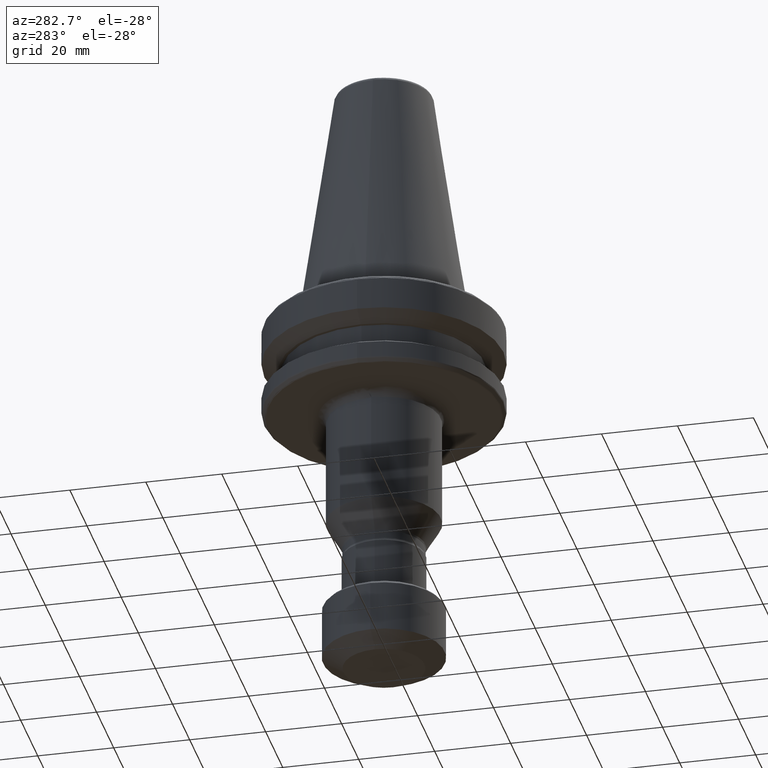
[diagram: clean part render]
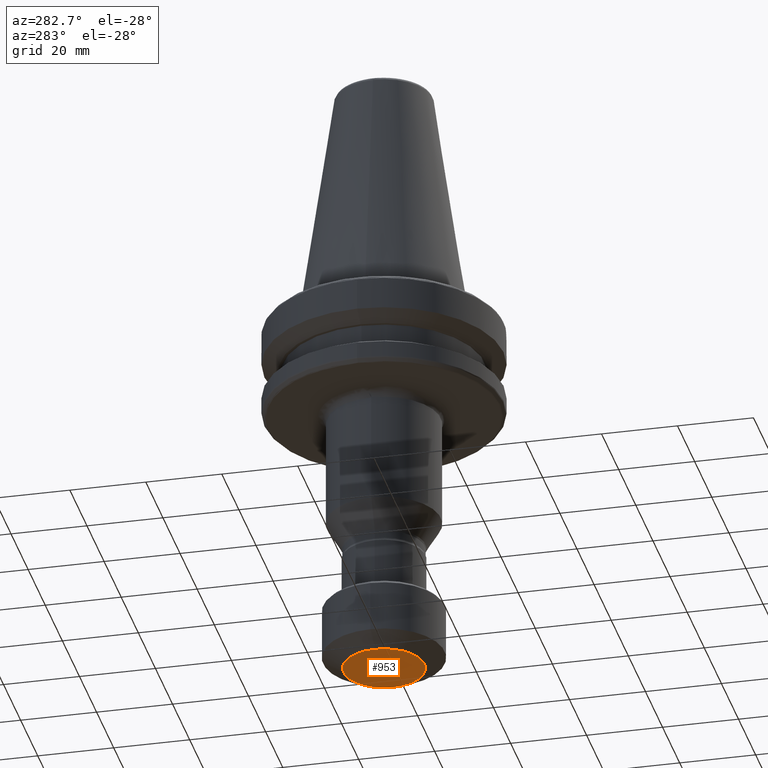
[diagram: same view with one face highlighted and labeled with its STEP entity id]
A machine part, auxiliary view. The second image highlights one B-rep face of the part: STEP entity #953.
In plain terms, the highlighted planar face has unit normal (-0, 0, -1).
Its self-contained STEP definition (entity closure, byte-faithful):
#65 = CIRCLE ( 'NONE', #223, 10.67095564673592500 ) ;
#223 = AXIS2_PLACEMENT_3D ( 'NONE', #832, #2987, #1141 ) ;
#520 = CIRCLE ( 'NONE', #3042, 10.67095564673592500 ) ;
#533 = CARTESIAN_POINT ( 'NONE',  ( 88.65254260326510400, 103.8751982920319800, -1.732962761568514100 ) ) ;
#832 = CARTESIAN_POINT ( 'NONE',  ( 77.98158695652918500, 103.8751982920319800, -1.732962761568514100 ) ) ;
#861 = FACE_OUTER_BOUND ( 'NONE', #3221, .T. ) ;
#953 = ADVANCED_FACE ( 'NONE', ( #861 ), #1194, .T. ) ;
#1141 = DIRECTION ( 'NONE',  ( -1.000000000000000000, 0.0000000000000000000, 0.0000000000000000000 ) ) ;
#1194 = PLANE ( 'NONE',  #2471 ) ;
#1307 = CARTESIAN_POINT ( 'NONE',  ( 77.98158695652918500, 103.8751982920319800, -1.732962761568514100 ) ) ;
#1497 = DIRECTION ( 'NONE',  ( -1.000000000000000000, 0.0000000000000000000, 0.0000000000000000000 ) ) ;
#1655 = DIRECTION ( 'NONE',  ( -1.000000000000000000, 0.0000000000000000000, 0.0000000000000000000 ) ) ;
#1930 = EDGE_CURVE ( 'NONE', #2767, #3774, #520, .T. ) ;
#2471 = AXIS2_PLACEMENT_3D ( 'NONE', #2490, #3683, #1497 ) ;
#2490 = CARTESIAN_POINT ( 'NONE',  ( 77.98158695652918500, 112.2523663652047500, -1.732962761795309400 ) ) ;
#2767 = VERTEX_POINT ( 'NONE', #3159 ) ;
#2987 = DIRECTION ( 'NONE',  ( -0.0000000000000000000, -0.0000000000000000000, -1.000000000000000000 ) ) ;
#3042 = AXIS2_PLACEMENT_3D ( 'NONE', #1307, #3483, #1655 ) ;
#3159 = CARTESIAN_POINT ( 'NONE',  ( 67.31063130979325100, 103.8751982920319800, -1.732962761568514100 ) ) ;
#3160 = EDGE_CURVE ( 'NONE', #3774, #2767, #65, .T. ) ;
#3221 = EDGE_LOOP ( 'NONE', ( #3658, #3394 ) ) ;
#3394 = ORIENTED_EDGE ( 'NONE', *, *, #1930, .T. ) ;
#3483 = DIRECTION ( 'NONE',  ( -0.0000000000000000000, -0.0000000000000000000, -1.000000000000000000 ) ) ;
#3658 = ORIENTED_EDGE ( 'NONE', *, *, #3160, .T. ) ;
#3683 = DIRECTION ( 'NONE',  ( -0.0000000000000000000, 0.0000000000000000000, -1.000000000000000000 ) ) ;
#3774 = VERTEX_POINT ( 'NONE', #533 ) ;